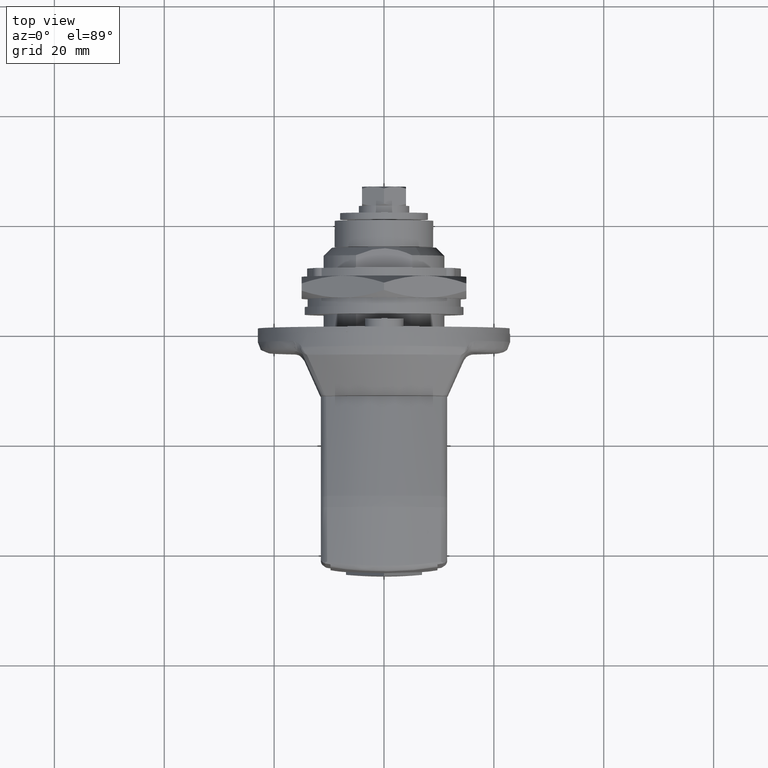
[diagram: clean part render]
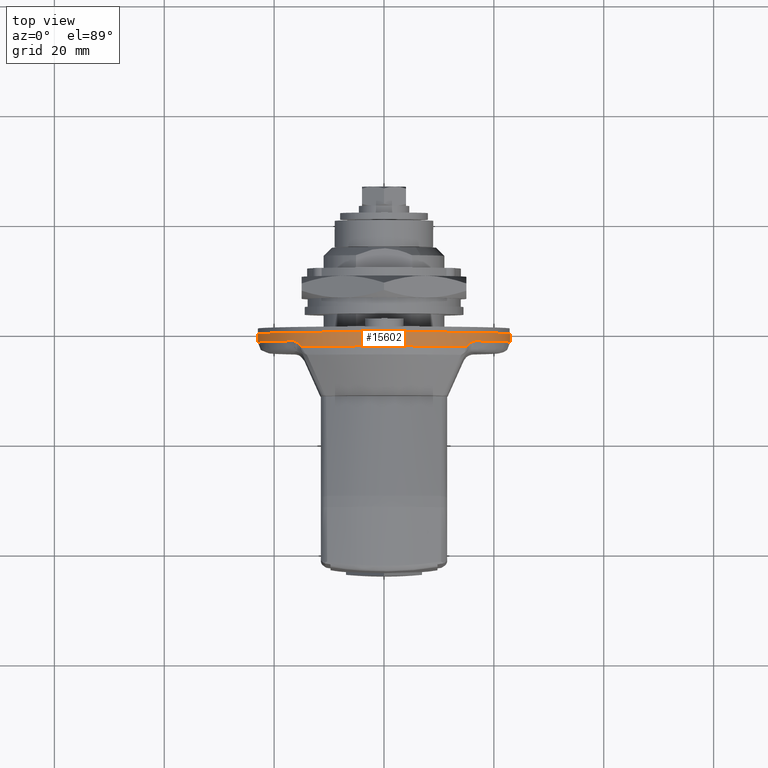
[diagram: same view with one face highlighted and labeled with its STEP entity id]
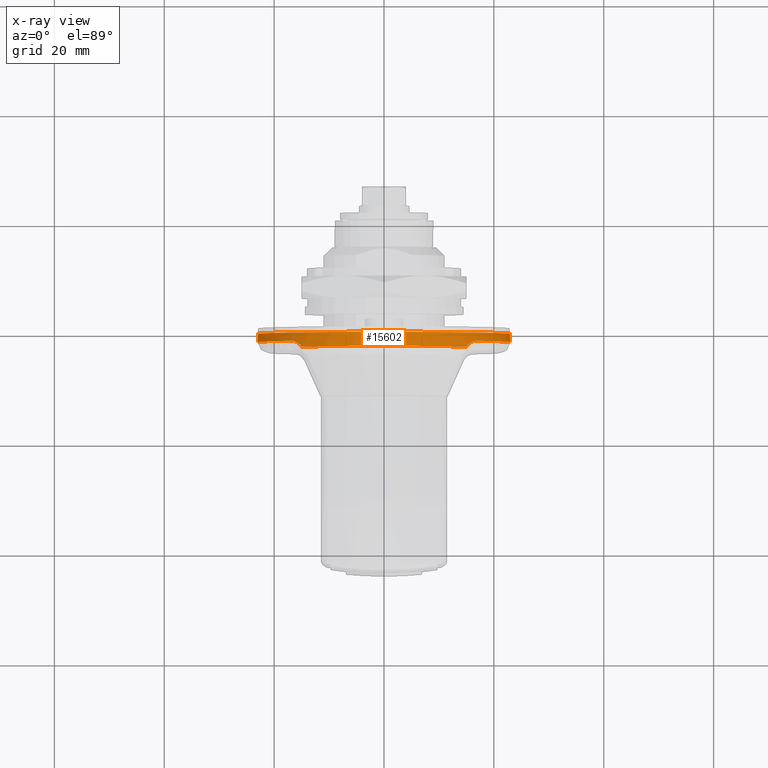
[diagram: x-ray of the same camera — body ghosted, the highlighted face saturated]
A machine part, top view. The second image highlights one B-rep face of the part: STEP entity #15602.
The next image is the same camera in x-ray: the body ghosted, the highlighted face saturated — about 0% of this face is hidden behind the body in this view.
In plain terms, the highlighted face is a freeform B-spline surface patch.
Its self-contained STEP definition (entity closure, byte-faithful):
#15405=CARTESIAN_POINT('',(-0.934081905027959,-22.957100363702931,1.404116409301726));
#15406=CARTESIAN_POINT('',(-0.934081905027958,-21.552983954401199,24.361216773004664));
#15407=CARTESIAN_POINT('',(-0.934081905027959,1.404116409301726,22.957100363702931));
#15408=CARTESIAN_POINT('',(-0.934081905027958,24.361216773004664,21.552983954401199));
#15409=CARTESIAN_POINT('',(-0.934081905027959,22.957100363702931,-1.404116409301726));
#15410=CARTESIAN_POINT('',(-3.704289846219628,-22.957100363702931,1.404116409301726));
#15411=CARTESIAN_POINT('',(-3.704289846219629,-21.552983954401199,24.361216773004664));
#15412=CARTESIAN_POINT('',(-3.704289846219628,1.404116409301726,22.957100363702931));
#15413=CARTESIAN_POINT('',(-3.704289846219629,24.361216773004664,21.552983954401199));
#15414=CARTESIAN_POINT('',(-3.704289846219628,22.957100363702931,-1.404116409301726));
#15422=(BOUNDED_SURFACE()B_SPLINE_SURFACE(2,1,((#15405,#15410),(#15406,#15411),(#15407,#15412),(#15408,#15413),(#15409,#15414)),.UNSPECIFIED.,.F.,.F.,.U.)B_SPLINE_SURFACE_WITH_KNOTS((3,2,3),(2,2),(0.0,38.107647738324737,76.215295476649473),(0.0,2.770207941191671),.UNSPECIFIED.)GEOMETRIC_REPRESENTATION_ITEM()RATIONAL_B_SPLINE_SURFACE(((1.0,1.0),(0.707106781186548,0.707106781186548),(1.0,1.0),(0.707106781186548,0.707106781186548),(1.0,1.0)))REPRESENTATION_ITEM('')SURFACE());
#15423=CARTESIAN_POINT('',(-2.499999999999860,-16.620486204413950,15.898409930835401));
#15424=VERTEX_POINT('',#15423);
#15425=CARTESIAN_POINT('',(-2.499999999997497,-22.957100643896911,1.404111828155707));
#15426=VERTEX_POINT('',#15425);
#15427=CARTESIAN_POINT('',(-2.499999999999860,-16.620486204413940,15.898409930835401));
#15428=CARTESIAN_POINT('',(-2.499999999999861,-22.442879918798866,9.811573899584820));
#15429=CARTESIAN_POINT('',(-2.499999999997498,-22.957100643896911,1.404111828155707));
#15437=(BOUNDED_CURVE()B_SPLINE_CURVE(2,(#15427,#15428,#15429),.UNSPECIFIED.,.F.,.U.)B_SPLINE_CURVE_WITH_KNOTS((3,3),(0.0,0.461929797219606),.UNSPECIFIED.)CURVE()GEOMETRIC_REPRESENTATION_ITEM()RATIONAL_B_SPLINE_CURVE((1.0,0.871874455915011,0.862118925025683))REPRESENTATION_ITEM(''));
#15438=EDGE_CURVE('',#15424,#15426,#15437,.T.);
#15439=ORIENTED_EDGE('',*,*,#15438,.T.);
#15440=CARTESIAN_POINT('',(-0.999999999999801,-22.957102025329849,1.404089241414134));
#15441=VERTEX_POINT('',#15440);
#15442=CARTESIAN_POINT('',(-0.999999999999801,-22.957102025329849,1.404089241414134));
#15443=CARTESIAN_POINT('',(-2.499999999997497,-22.957100643896911,1.404111828155707));
#15444=QUASI_UNIFORM_CURVE('',1,(#15442,#15443),.UNSPECIFIED.,.F.,.U.);
#15445=EDGE_CURVE('',#15441,#15426,#15444,.T.);
#15446=ORIENTED_EDGE('',*,*,#15445,.F.);
#15447=CARTESIAN_POINT('',(-0.999999999999801,0.0,23.0));
#15448=VERTEX_POINT('',#15447);
#15449=CARTESIAN_POINT('',(-0.999999999999801,-22.957102025329856,1.404089241414134));
#15450=CARTESIAN_POINT('',(-0.999999999999801,-21.636265191445379,23.0));
#15451=CARTESIAN_POINT('',(-0.999999999999801,0.0,23.0));
#15459=(BOUNDED_CURVE()B_SPLINE_CURVE(2,(#15449,#15450,#15451),.UNSPECIFIED.,.F.,.U.)B_SPLINE_CURVE_WITH_KNOTS((3,3),(0.760666833562710,1.0),.UNSPECIFIED.)CURVE()GEOMETRIC_REPRESENTATION_ITEM()RATIONAL_B_SPLINE_CURVE((0.976072479303038,0.719603754053465,1.0))REPRESENTATION_ITEM(''));
#15460=EDGE_CURVE('',#15441,#15448,#15459,.T.);
#15461=ORIENTED_EDGE('',*,*,#15460,.T.);
#15462=CARTESIAN_POINT('',(-0.999999999999801,22.957102025329849,-1.404089241414131));
#15463=VERTEX_POINT('',#15462);
#15464=CARTESIAN_POINT('',(-0.999999999999801,0.0,23.0));
#15465=CARTESIAN_POINT('',(-0.999999999999801,22.999999999999993,22.999999999999993));
#15466=CARTESIAN_POINT('',(-0.999999999999801,23.0,0.0));
#15467=CARTESIAN_POINT('',(-0.999999999999801,22.999999999999993,-0.702699933836928));
#15468=CARTESIAN_POINT('',(-0.999999999999801,22.957102025329853,-1.404089241414131));
#15476=(BOUNDED_CURVE()B_SPLINE_CURVE(2,(#15464,#15465,#15466,#15467,#15468),.UNSPECIFIED.,.F.,.U.)B_SPLINE_CURVE_WITH_KNOTS((3,2,3),(0.0,0.250000000000000,0.260666833562710),.UNSPECIFIED.)CURVE()GEOMETRIC_REPRESENTATION_ITEM()RATIONAL_B_SPLINE_CURVE((1.0,0.707106781186548,1.0,0.987503027133082,0.976072479303038))REPRESENTATION_ITEM(''));
#15477=EDGE_CURVE('',#15448,#15463,#15476,.T.);
#15478=ORIENTED_EDGE('',*,*,#15477,.T.);
#15479=CARTESIAN_POINT('',(-2.499999999997649,22.957100649275091,-1.404111740222626));
#15480=VERTEX_POINT('',#15479);
#15481=CARTESIAN_POINT('',(-0.999999999999801,22.957102025329849,-1.404089241414131));
#15482=CARTESIAN_POINT('',(-2.499999999997649,22.957100649275091,-1.404111740222626));
#15483=QUASI_UNIFORM_CURVE('',1,(#15481,#15482),.UNSPECIFIED.,.F.,.U.);
#15484=EDGE_CURVE('',#15463,#15480,#15483,.T.);
#15485=ORIENTED_EDGE('',*,*,#15484,.T.);
#15486=CARTESIAN_POINT('',(-2.499999999999860,16.446406345843751,16.078423999490450));
#15487=VERTEX_POINT('',#15486);
#15488=CARTESIAN_POINT('',(-2.499999999997649,22.957100649275084,-1.404111740222626));
#15489=CARTESIAN_POINT('',(-2.499999999999860,23.580076509876854,8.781487542370728));
#15490=CARTESIAN_POINT('',(-2.499999999999860,16.446406345843759,16.078423999490440));
#15498=(BOUNDED_CURVE()B_SPLINE_CURVE(2,(#15488,#15489,#15490),.UNSPECIFIED.,.F.,.U.)B_SPLINE_CURVE_WITH_KNOTS((3,3),(0.462521429308052,1.0),.UNSPECIFIED.)CURVE()GEOMETRIC_REPRESENTATION_ITEM()RATIONAL_B_SPLINE_CURVE((0.858331047619418,0.846851471733403,1.0))REPRESENTATION_ITEM(''));
#15499=EDGE_CURVE('',#15480,#15487,#15498,.T.);
#15500=ORIENTED_EDGE('',*,*,#15499,.T.);
#15501=CARTESIAN_POINT('',(-3.636208322278480,14.951521614967360,17.477185168017300));
#15502=VERTEX_POINT('',#15501);
#15503=CARTESIAN_POINT('',(-2.499999999999860,16.446406345843751,16.078423999490450));
#15504=CARTESIAN_POINT('',(-2.508283886569946,16.430263631325221,16.094936167754302));
#15505=CARTESIAN_POINT('',(-2.516660148038910,16.413843677606678,16.111681491703472));
#15506=CARTESIAN_POINT('',(-2.533245630533880,16.381109974729689,16.144961466625439));
#15507=CARTESIAN_POINT('',(-2.558028830778303,16.331910234145649,16.194830300494619));
#15508=CARTESIAN_POINT('',(-2.582658226647589,16.282444880279069,16.244512040118050));
#15509=CARTESIAN_POINT('',(-2.632082581159832,16.183252401962228,16.343533048207469));
#15510=CARTESIAN_POINT('',(-2.665241397381203,16.116771735573838,16.409091869286719));
#15511=CARTESIAN_POINT('',(-2.768636307484578,15.917188628563579,16.603542235554979));
#15512=CARTESIAN_POINT('',(-2.842988741962124,15.784022858236350,16.730090418714340));
#15513=CARTESIAN_POINT('',(-2.975339682008423,15.589590054312881,16.910721678579929));
#15514=CARTESIAN_POINT('',(-3.023033746045494,15.525454511350020,16.969602837246079));
#15515=CARTESIAN_POINT('',(-3.125997096811407,15.400189384579010,17.083363988306552));
#15516=CARTESIAN_POINT('',(-3.180985963963540,15.339354433405290,17.137981564440981));
#15517=CARTESIAN_POINT('',(-3.356941058360589,15.162709134182791,17.295001528163201));
#15518=CARTESIAN_POINT('',(-3.488825052675834,15.052718363746360,17.390612567098572));
#15519=CARTESIAN_POINT('',(-3.636208322278480,14.951521614967360,17.477185168017300));
#15520=B_SPLINE_CURVE_WITH_KNOTS('',3,(#15503,#15504,#15505,#15506,#15507,#15508,#15509,#15510,#15511,#15512,#15513,#15514,#15515,#15516,#15517,#15518,#15519),.UNSPECIFIED.,.F.,.U.,(4,2,1,2,2,2,2,2,4),(0.0,0.031250000000000,0.062500000000000,0.125000000000000,0.250000000000000,0.499999999999999,0.624999999999999,0.749999999999999,1.0),.UNSPECIFIED.);
#15521=EDGE_CURVE('',#15487,#15502,#15520,.T.);
#15522=ORIENTED_EDGE('',*,*,#15521,.T.);
#15523=CARTESIAN_POINT('',(-3.636723798873480,-14.981617423698641,17.451393622571501));
#15524=VERTEX_POINT('',#15523);
#15525=CARTESIAN_POINT('',(-3.636208322278477,14.951521614967360,17.477185168017300));
#15526=CARTESIAN_POINT('',(-3.631764114818394,14.691641022846500,17.699509887533139));
#15527=CARTESIAN_POINT('',(-3.627420416456654,14.426961124164309,17.915906594689869));
#15528=CARTESIAN_POINT('',(-3.621110967458168,14.022746349955570,18.231615778689441));
#15529=CARTESIAN_POINT('',(-3.619041933678494,13.886808492476080,18.335370639099931));
#15530=CARTESIAN_POINT('',(-3.614978688856305,13.612528894561320,18.539911641499462));
#15531=CARTESIAN_POINT('',(-3.612983286560587,13.474098761746619,18.640758614471132));
#15532=CARTESIAN_POINT('',(-3.603230591256696,12.777724874454870,19.136281082311712));
#15533=CARTESIAN_POINT('',(-3.596145405305288,12.206231436043200,19.505597358667750));
#15534=CARTESIAN_POINT('',(-3.583423205829590,11.035108216837150,20.191255553615498));
#15535=CARTESIAN_POINT('',(-3.577784094443953,10.435477195198390,20.507595096315249));
#15536=CARTESIAN_POINT('',(-3.567655109999187,9.208057790129429,21.087254744502811));
#15537=CARTESIAN_POINT('',(-3.563160668774639,8.580270830682570,21.350577448557129));
#15538=CARTESIAN_POINT('',(-3.557915640720153,7.777508193463114,21.645776241747090));
#15539=CARTESIAN_POINT('',(-3.556888685566022,7.616205479898476,21.703053857010818));
#15540=CARTESIAN_POINT('',(-3.554894804185246,7.293267972190994,21.813696956686659));
#15541=CARTESIAN_POINT('',(-3.551990396595007,6.807863745874141,21.973977699006220));
#15542=CARTESIAN_POINT('',(-3.549377955062604,6.319496331099972,22.117382204156151));
#15543=CARTESIAN_POINT('',(-3.544598798476925,5.338869104608938,22.382023913352619));
#15544=CARTESIAN_POINT('',(-3.539433567620866,4.021001308000628,22.675851903000190));
#15545=CARTESIAN_POINT('',(-3.536810471133195,2.682652613097949,22.853043982985650));
#15546=CARTESIAN_POINT('',(-3.535630975642659,1.671124719857107,22.941706633408771));
#15547=CARTESIAN_POINT('',(-3.535366936729997,1.332652503758170,22.963878336200199));
#15548=CARTESIAN_POINT('',(-3.535042261544418,0.653077975096394,22.993241617788950));
#15549=CARTESIAN_POINT('',(-3.534981616062054,0.311826402424945,23.000433163973920));
#15550=CARTESIAN_POINT('',(-3.534993252780778,-0.715038277801993,22.999073155325160));
#15551=CARTESIAN_POINT('',(-3.535278473081412,-1.394461138225958,22.967674013014229));
#15552=CARTESIAN_POINT('',(-3.536913927623891,-2.743328767390571,22.845846859070878));
#15553=CARTESIAN_POINT('',(-3.539611720822797,-4.082216557687784,22.664980451452610));
#15554=CARTESIAN_POINT('',(-3.544865380525836,-5.401319217401207,22.367075719385721));
#15555=CARTESIAN_POINT('',(-3.549709785683763,-6.383118312140685,22.099114959528691));
#15556=CARTESIAN_POINT('',(-3.551473013822834,-6.709128216822704,22.002361920597959));
#15557=CARTESIAN_POINT('',(-3.554311363106147,-7.196227678406951,21.845900990328062));
#15558=CARTESIAN_POINT('',(-3.555289565018047,-7.358274809244380,21.791858049619162));
#15559=CARTESIAN_POINT('',(-3.557303162080884,-7.681723694826232,21.679954024385221));
#15560=CARTESIAN_POINT('',(-3.558335870866424,-7.842690731308239,21.622241154656621));
#15561=CARTESIAN_POINT('',(-3.563596901101258,-8.642475942581473,21.325416218566261));
#15562=CARTESIAN_POINT('',(-3.568105983331058,-9.267514835123576,21.061111204722270));
#15563=CARTESIAN_POINT('',(-3.578267904132279,-10.488818364590349,20.480281387508938));
#15564=CARTESIAN_POINT('',(-3.583922479063534,-11.085081195473020,20.163753337464520));
#15565=CARTESIAN_POINT('',(-3.596656630236867,-12.248945871440450,19.478688323469409));
#15566=CARTESIAN_POINT('',(-3.603738178731236,-12.816548569298799,19.110152944437711));
#15567=CARTESIAN_POINT('',(-3.615411153402589,-13.646040708417949,18.517587280243859));
#15568=CARTESIAN_POINT('',(-3.619474714713291,-13.918880794002220,18.313428606029071));
#15569=CARTESIAN_POINT('',(-3.625799530787871,-14.322551983937061,17.997047872744641));
#15570=CARTESIAN_POINT('',(-3.627945867219399,-14.456172693534469,17.889895192139061));
#15571=CARTESIAN_POINT('',(-3.632293714676837,-14.720745261159420,17.672830500150919));
#15572=CARTESIAN_POINT('',(-3.634496784635347,-14.851797944433169,17.562840640188679));
#15573=CARTESIAN_POINT('',(-3.636723798873485,-14.981617423698641,17.451393622571509));
#15574=B_SPLINE_CURVE_WITH_KNOTS('',3,(#15525,#15526,#15527,#15528,#15529,#15530,#15531,#15532,#15533,#15534,#15535,#15536,#15537,#15538,#15539,#15540,#15541,#15542,#15543,#15544,#15545,#15546,#15547,#15548,#15549,#15550,#15551,#15552,#15553,#15554,#15555,#15556,#15557,#15558,#15559,#15560,#15561,#15562,#15563,#15564,#15565,#15566,#15567,#15568,#15569,#15570,#15571,#15572,#15573),.UNSPECIFIED.,.F.,.U.,(4,2,2,2,2,2,2,2,1,2,1,2,2,2,2,1,2,2,2,2,2,2,2,2,2,4),(0.0,0.031250000000000,0.046875000000000,0.062500000000000,0.124999999999999,0.187499999999999,0.249999999999999,0.265624999999999,0.281249999999999,0.312499999999999,0.374999999999999,0.437499999999999,0.468749999999999,0.499999999999999,0.562499999999999,0.624999999999999,0.687499999999999,0.718749999999999,0.734374999999999,0.749999999999999,0.812500000000000,0.875000000000000,0.937500000000000,0.968750000000000,0.984375000000000,1.0),.UNSPECIFIED.);
#15575=EDGE_CURVE('',#15502,#15524,#15574,.T.);
#15576=ORIENTED_EDGE('',*,*,#15575,.T.);
#15577=CARTESIAN_POINT('',(-3.636723798873480,-14.981617423698641,17.451393622571501));
#15578=CARTESIAN_POINT('',(-3.473719747711173,-15.090599394762521,17.357835123355279));
#15579=CARTESIAN_POINT('',(-3.328680388573529,-15.209621711370820,17.253896733634541));
#15580=CARTESIAN_POINT('',(-3.137086011716861,-15.401753192526860,17.081960802875379));
#15581=CARTESIAN_POINT('',(-3.077581048966692,-15.468081697912250,17.021958996307770));
#15582=CARTESIAN_POINT('',(-2.994875075232040,-15.570886166259511,16.927777877462422));
#15583=CARTESIAN_POINT('',(-2.968329990526752,-15.605807089510190,16.895593467918051));
#15584=CARTESIAN_POINT('',(-2.917892658882626,-15.676032064450171,16.830457874416009));
#15585=CARTESIAN_POINT('',(-2.893964955262454,-15.711368149297250,16.797478602300270));
#15586=CARTESIAN_POINT('',(-2.780352249636364,-15.889029507860670,16.630597270637359));
#15587=CARTESIAN_POINT('',(-2.708978268882970,-16.034343123441499,16.490671056200050));
#15588=CARTESIAN_POINT('',(-2.619919456714487,-16.253829996848999,16.273401864838970));
#15589=CARTESIAN_POINT('',(-2.593180571260872,-16.327234672388879,16.199764495869118));
#15590=CARTESIAN_POINT('',(-2.556150788090760,-16.437339497036820,16.087778302219760));
#15591=CARTESIAN_POINT('',(-2.544323468319169,-16.474044125432290,16.050191449528949));
#15592=CARTESIAN_POINT('',(-2.527227685083095,-16.529059357809651,15.993463996248931));
#15593=CARTESIAN_POINT('',(-2.521639847167699,-16.547381288491390,15.974506836458859));
#15594=CARTESIAN_POINT('',(-2.510665510961101,-16.583988934677130,15.936499213732390));
#15595=CARTESIAN_POINT('',(-2.505267928051012,-16.602357319670649,15.917362195878781));
#15596=CARTESIAN_POINT('',(-2.499999999999855,-16.620486204413950,15.898409930835401));
#15597=B_SPLINE_CURVE_WITH_KNOTS('',3,(#15577,#15578,#15579,#15580,#15581,#15582,#15583,#15584,#15585,#15586,#15587,#15588,#15589,#15590,#15591,#15592,#15593,#15594,#15595,#15596),.UNSPECIFIED.,.F.,.U.,(4,2,2,2,2,2,2,2,2,4),(0.0,0.249999999999993,0.374999999999990,0.437499999999988,0.499999999999987,0.749999999999991,0.874999999999994,0.937499999999997,0.968749999999998,1.0),.UNSPECIFIED.);
#15598=EDGE_CURVE('',#15524,#15424,#15597,.T.);
#15599=ORIENTED_EDGE('',*,*,#15598,.T.);
#15600=EDGE_LOOP('',(#15439,#15446,#15461,#15478,#15485,#15500,#15522,#15576,#15599));
#15601=FACE_OUTER_BOUND('',#15600,.T.);
#15602=ADVANCED_FACE('',(#15601),#15422,.T.);